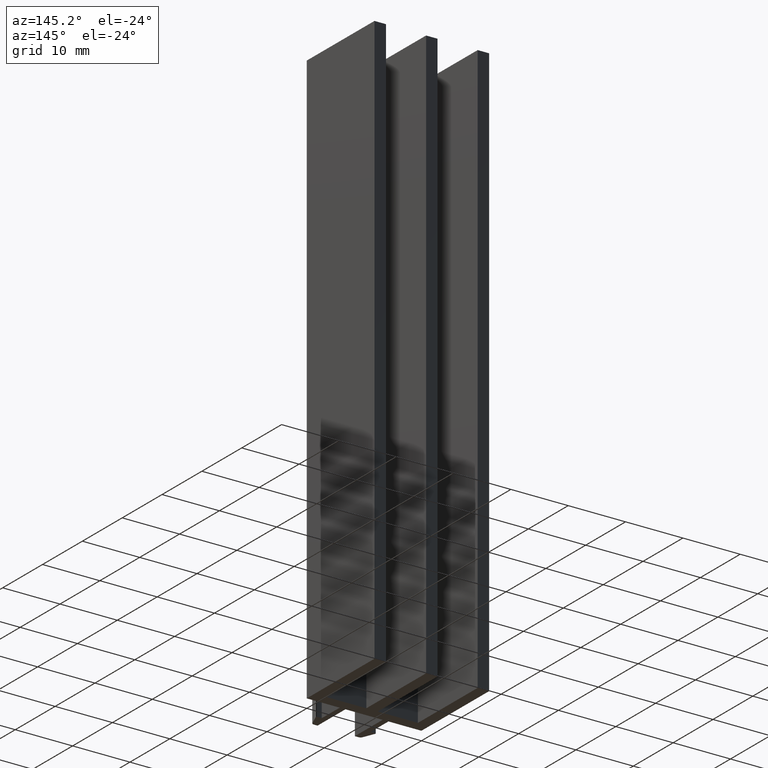
[diagram: clean part render]
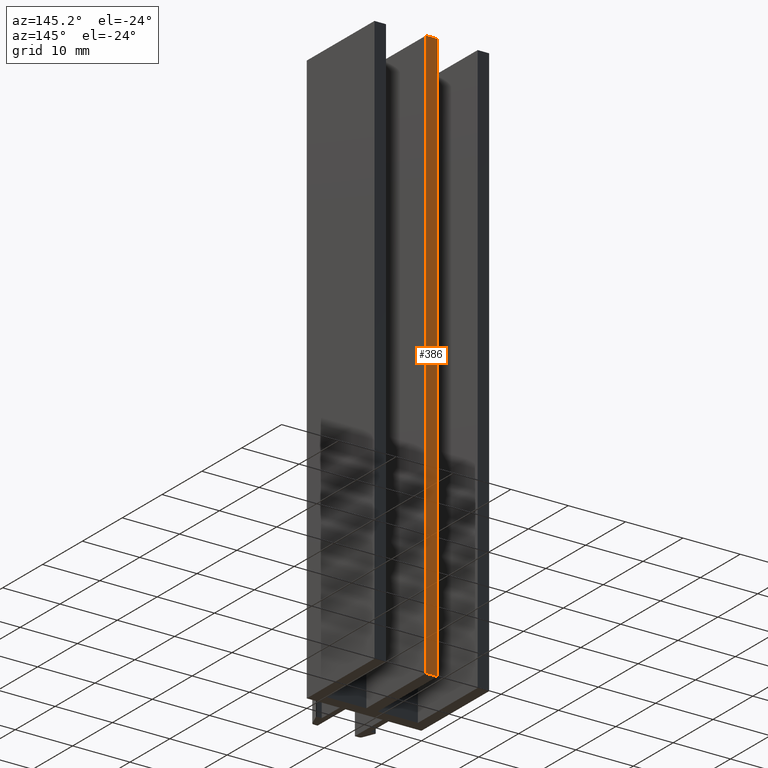
[diagram: same view with one face highlighted and labeled with its STEP entity id]
A machine part, auxiliary view. The second image highlights one B-rep face of the part: STEP entity #386.
In plain terms, the highlighted planar face has unit normal (0, 1, 0).
Its self-contained STEP definition (entity closure, byte-faithful):
#330=CARTESIAN_POINT('',(-8.999999999964075,16.999999999932015,0.0));
#331=VERTEX_POINT('',#330);
#338=CARTESIAN_POINT('',(-8.999999999964075,16.999999999932015,100.0));
#339=VERTEX_POINT('',#338);
#340=CARTESIAN_POINT('',(-8.999999999964075,16.999999999932015,0.0));
#341=DIRECTION('',(0.0,0.0,1.0));
#342=VECTOR('',#341,100.0);
#343=LINE('',#340,#342);
#344=EDGE_CURVE('',#331,#339,#343,.T.);
#356=CARTESIAN_POINT('',(-8.999999999964075,16.999999999932015,0.0));
#357=DIRECTION('',(0.0,1.0,0.0));
#358=DIRECTION('',(-1.0,0.0,0.0));
#359=AXIS2_PLACEMENT_3D('',#356,#357,#358);
#360=PLANE('',#359);
#361=CARTESIAN_POINT('',(-10.999999999956117,16.999999999932015,0.0));
#362=VERTEX_POINT('',#361);
#363=CARTESIAN_POINT('',(-8.999999999964109,16.999999999932015,0.0));
#364=DIRECTION('',(-1.0,0.0,0.0));
#365=VECTOR('',#364,1.999999999992008);
#366=LINE('',#363,#365);
#367=EDGE_CURVE('',#331,#362,#366,.T.);
#368=ORIENTED_EDGE('',*,*,#367,.T.);
#369=CARTESIAN_POINT('',(-10.999999999956117,16.999999999932015,100.0));
#370=VERTEX_POINT('',#369);
#371=CARTESIAN_POINT('',(-10.999999999956117,16.999999999932015,0.0));
#372=DIRECTION('',(0.0,0.0,1.0));
#373=VECTOR('',#372,100.0);
#374=LINE('',#371,#373);
#375=EDGE_CURVE('',#362,#370,#374,.T.);
#376=ORIENTED_EDGE('',*,*,#375,.T.);
#377=CARTESIAN_POINT('',(-8.999999999964109,16.999999999932015,100.0));
#378=DIRECTION('',(-1.0,0.0,0.0));
#379=VECTOR('',#378,1.999999999992008);
#380=LINE('',#377,#379);
#381=EDGE_CURVE('',#339,#370,#380,.T.);
#382=ORIENTED_EDGE('',*,*,#381,.F.);
#383=ORIENTED_EDGE('',*,*,#344,.F.);
#384=EDGE_LOOP('',(#368,#376,#382,#383));
#385=FACE_OUTER_BOUND('',#384,.T.);
#386=ADVANCED_FACE('',(#385),#360,.T.);